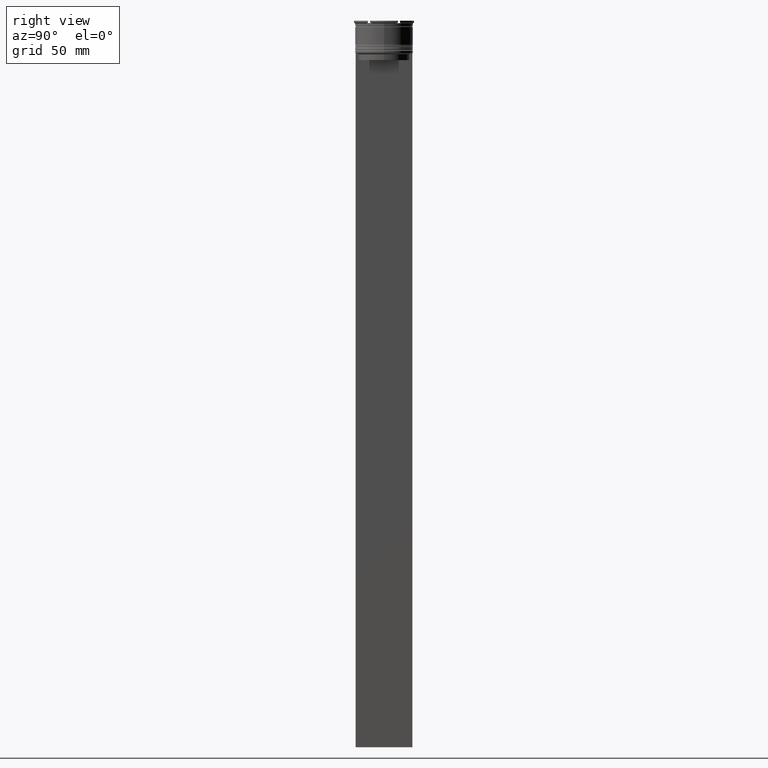
[diagram: clean part render]
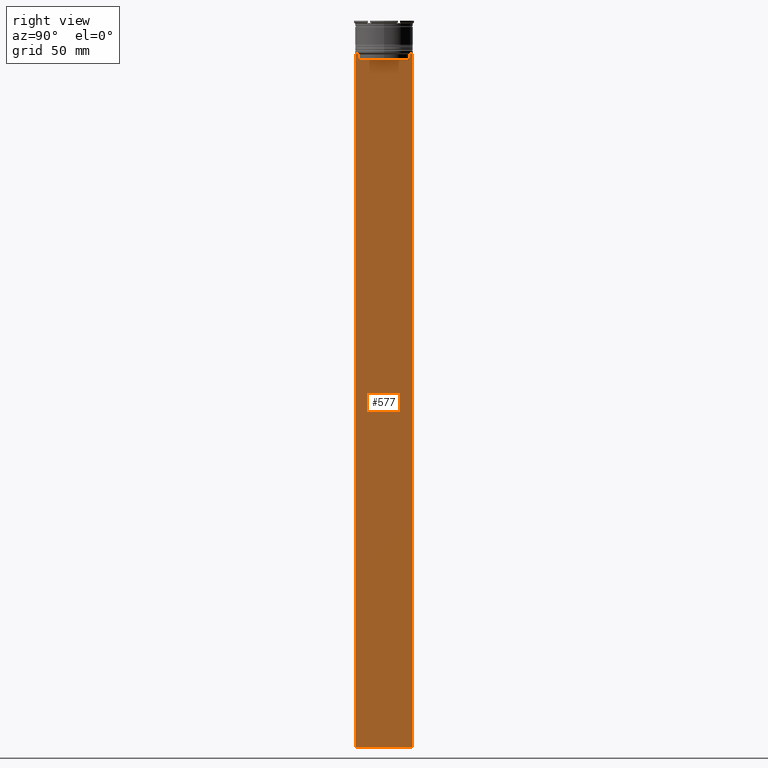
[diagram: same view with one face highlighted and labeled with its STEP entity id]
A machine part, right view. The second image highlights one B-rep face of the part: STEP entity #577.
In plain terms, the highlighted planar face has unit normal (-1, 0, 0).
Its self-contained STEP definition (entity closure, byte-faithful):
#16 = DIRECTION ( 'NONE',  ( 0.000000000000000000, 1.000000000000000000, 0.000000000000000000 ) ) ;
#42 = EDGE_CURVE ( 'NONE', #2016, #1810, #101, .T. ) ;
#76 = CARTESIAN_POINT ( 'NONE',  ( 0.5000000000000002220, -12.25000000000000711, -14.00000000000000178 ) ) ;
#91 = EDGE_LOOP ( 'NONE', ( #483, #1949, #1472, #2586, #1840, #2432, #2313, #875, #1329, #543 ) ) ;
#101 = LINE ( 'NONE', #1385, #1136 ) ;
#143 = VECTOR ( 'NONE', #1109, 1000.000000000000000 ) ;
#169 = DIRECTION ( 'NONE',  ( -1.000000000000000000, 0.000000000000000000, 0.000000000000000000 ) ) ;
#217 = CARTESIAN_POINT ( 'NONE',  ( 0.5000000000000002220, -12.25000000000000711, -314.0000000000000000 ) ) ;
#259 = EDGE_CURVE ( 'NONE', #2016, #2414, #1090, .T. ) ;
#347 = CARTESIAN_POINT ( 'NONE',  ( 0.5000000000000002220, -10.88852607105296322, -14.50000000000000000 ) ) ;
#389 = CARTESIAN_POINT ( 'NONE',  ( 0.5000000000000002220, 10.90000000000000213, -17.00000000000000000 ) ) ;
#435 = CARTESIAN_POINT ( 'NONE',  ( 0.5000000000000002220, -12.25000000000000711, -14.00000000000000178 ) ) ;
#441 = LINE ( 'NONE', #901, #2281 ) ;
#456 = VECTOR ( 'NONE', #2415, 1000.000000000000000 ) ;
#483 = ORIENTED_EDGE ( 'NONE', *, *, #259, .T. ) ;
#522 = EDGE_CURVE ( 'NONE', #2074, #1511, #604, .T. ) ;
#543 = ORIENTED_EDGE ( 'NONE', *, *, #42, .F. ) ;
#562 = EDGE_CURVE ( 'NONE', #2746, #1247, #1631, .T. ) ;
#573 = CARTESIAN_POINT ( 'NONE',  ( 0.5000000000000002220, -10.88852607105296322, 0.000000000000000000 ) ) ;
#577 = ADVANCED_FACE ( 'NONE', ( #1250 ), #2753, .F. ) ;
#604 = B_SPLINE_CURVE_WITH_KNOTS ( 'NONE', 3,
 ( #1475, #2174, #2552, #1041 ),
 .UNSPECIFIED., .F., .F.,
 ( 4, 4 ),
 ( 0.05041323384703228633, 0.05112713601261608537 ),
 .UNSPECIFIED. ) ;
#628 = CARTESIAN_POINT ( 'NONE',  ( 0.5000000000000002220, 10.88852607105296322, -14.50000000000000000 ) ) ;
#675 = CARTESIAN_POINT ( 'NONE',  ( 0.5000000000000002220, 12.24999999999999289, -14.00000000000000178 ) ) ;
#709 = CARTESIAN_POINT ( 'NONE',  ( 0.5000000000000002220, -12.25000000000000711, 10.52039967047845792 ) ) ;
#752 = DIRECTION ( 'NONE',  ( 0.000000000000000000, 0.000000000000000000, -1.000000000000000000 ) ) ;
#795 = LINE ( 'NONE', #573, #1796 ) ;
#828 = VECTOR ( 'NONE', #2494, 1000.000000000000000 ) ;
#861 = CARTESIAN_POINT ( 'NONE',  ( 0.5000000000000002220, 12.24999999999999289, -314.0000000000000000 ) ) ;
#875 = ORIENTED_EDGE ( 'NONE', *, *, #1055, .T. ) ;
#901 = CARTESIAN_POINT ( 'NONE',  ( 0.5000000000000002220, -12.25000000000000711, -314.0000000000000000 ) ) ;
#1041 = CARTESIAN_POINT ( 'NONE',  ( 0.5000000000000002220, -11.38902980942626719, -14.00000000000000178 ) ) ;
#1055 = EDGE_CURVE ( 'NONE', #2705, #1866, #2619, .T. ) ;
#1060 = LINE ( 'NONE', #1915, #1280 ) ;
#1090 = LINE ( 'NONE', #435, #456 ) ;
#1109 = DIRECTION ( 'NONE',  ( 0.000000000000000000, 0.000000000000000000, -1.000000000000000000 ) ) ;
#1136 = VECTOR ( 'NONE', #752, 1000.000000000000000 ) ;
#1235 = CARTESIAN_POINT ( 'NONE',  ( 0.5000000000000002220, -12.25000000000000711, 10.52039967047845792 ) ) ;
#1247 = VERTEX_POINT ( 'NONE', #2276 ) ;
#1250 = FACE_OUTER_BOUND ( 'NONE', #91, .T. ) ;
#1280 = VECTOR ( 'NONE', #2771, 1000.000000000000000 ) ;
#1283 = EDGE_CURVE ( 'NONE', #1247, #2074, #795, .T. ) ;
#1329 = ORIENTED_EDGE ( 'NONE', *, *, #2405, .T. ) ;
#1341 = CARTESIAN_POINT ( 'NONE',  ( 0.5000000000000002220, 10.88852607105296144, -17.00000000000000000 ) ) ;
#1385 = CARTESIAN_POINT ( 'NONE',  ( 0.5000000000000002220, 12.24999999999999289, 10.52039967047845792 ) ) ;
#1388 = CARTESIAN_POINT ( 'NONE',  ( 0.5000000000000002220, 11.38902980942626719, -14.00000000000000178 ) ) ;
#1472 = ORIENTED_EDGE ( 'NONE', *, *, #1889, .T. ) ;
#1475 = CARTESIAN_POINT ( 'NONE',  ( 0.5000000000000002220, -10.88852607105296322, -14.50000000000000000 ) ) ;
#1511 = VERTEX_POINT ( 'NONE', #2636 ) ;
#1600 = CARTESIAN_POINT ( 'NONE',  ( 0.5000000000000002220, 10.88852607105296322, -14.50000000000000000 ) ) ;
#1631 = LINE ( 'NONE', #389, #828 ) ;
#1741 = CARTESIAN_POINT ( 'NONE',  ( 0.5000000000000002220, -12.25000000000000711, -14.00000000000000178 ) ) ;
#1796 = VECTOR ( 'NONE', #2674, 1000.000000000000000 ) ;
#1800 = DIRECTION ( 'NONE',  ( 0.000000000000000000, -1.000000000000000000, 0.000000000000000000 ) ) ;
#1810 = VERTEX_POINT ( 'NONE', #861 ) ;
#1840 = ORIENTED_EDGE ( 'NONE', *, *, #1283, .T. ) ;
#1866 = VERTEX_POINT ( 'NONE', #217 ) ;
#1881 = DIRECTION ( 'NONE',  ( 0.000000000000000000, 0.000000000000000000, 1.000000000000000000 ) ) ;
#1889 = EDGE_CURVE ( 'NONE', #2298, #2746, #1060, .T. ) ;
#1899 = AXIS2_PLACEMENT_3D ( 'NONE', #1235, #169, #1881 ) ;
#1915 = CARTESIAN_POINT ( 'NONE',  ( 0.5000000000000002220, 10.88852607105296322, 0.000000000000000000 ) ) ;
#1949 = ORIENTED_EDGE ( 'NONE', *, *, #2556, .T. ) ;
#1981 = B_SPLINE_CURVE_WITH_KNOTS ( 'NONE', 3,
 ( #1388, #2236, #2032, #1600 ),
 .UNSPECIFIED., .F., .F.,
 ( 4, 4 ),
 ( 0.01935560801904634073, 0.02006307108468586772 ),
 .UNSPECIFIED. ) ;
#2016 = VERTEX_POINT ( 'NONE', #675 ) ;
#2032 = CARTESIAN_POINT ( 'NONE',  ( 0.5000000000000002220, 11.05536450345590538, -14.33333719074559376 ) ) ;
#2074 = VERTEX_POINT ( 'NONE', #347 ) ;
#2174 = CARTESIAN_POINT ( 'NONE',  ( 0.5000000000000002220, -11.05536450423839057, -14.33333718996393280 ) ) ;
#2236 = CARTESIAN_POINT ( 'NONE',  ( 0.5000000000000002220, 11.22219891375843304, -14.16667035472756808 ) ) ;
#2276 = CARTESIAN_POINT ( 'NONE',  ( 0.5000000000000002220, -10.88852607105296144, -17.00000000000000000 ) ) ;
#2281 = VECTOR ( 'NONE', #16, 1000.000000000000000 ) ;
#2298 = VERTEX_POINT ( 'NONE', #628 ) ;
#2313 = ORIENTED_EDGE ( 'NONE', *, *, #2472, .T. ) ;
#2405 = EDGE_CURVE ( 'NONE', #1866, #1810, #441, .T. ) ;
#2414 = VERTEX_POINT ( 'NONE', #2622 ) ;
#2415 = DIRECTION ( 'NONE',  ( 0.000000000000000000, -1.000000000000000000, 0.000000000000000000 ) ) ;
#2432 = ORIENTED_EDGE ( 'NONE', *, *, #522, .T. ) ;
#2440 = LINE ( 'NONE', #76, #2554 ) ;
#2472 = EDGE_CURVE ( 'NONE', #1511, #2705, #2440, .T. ) ;
#2494 = DIRECTION ( 'NONE',  ( 0.000000000000000000, -1.000000000000000000, 0.000000000000000000 ) ) ;
#2552 = CARTESIAN_POINT ( 'NONE',  ( 0.5000000000000002220, -11.22219891450652973, -14.16667035398018903 ) ) ;
#2554 = VECTOR ( 'NONE', #1800, 1000.000000000000000 ) ;
#2556 = EDGE_CURVE ( 'NONE', #2414, #2298, #1981, .T. ) ;
#2586 = ORIENTED_EDGE ( 'NONE', *, *, #562, .T. ) ;
#2619 = LINE ( 'NONE', #709, #143 ) ;
#2622 = CARTESIAN_POINT ( 'NONE',  ( 0.5000000000000002220, 11.38902980942626719, -14.00000000000000178 ) ) ;
#2636 = CARTESIAN_POINT ( 'NONE',  ( 0.5000000000000002220, -11.38902980942626719, -14.00000000000000178 ) ) ;
#2674 = DIRECTION ( 'NONE',  ( -0.000000000000000000, -0.000000000000000000, 1.000000000000000000 ) ) ;
#2705 = VERTEX_POINT ( 'NONE', #1741 ) ;
#2746 = VERTEX_POINT ( 'NONE', #1341 ) ;
#2753 = PLANE ( 'NONE',  #1899 ) ;
#2771 = DIRECTION ( 'NONE',  ( 0.000000000000000000, 0.000000000000000000, -1.000000000000000000 ) ) ;